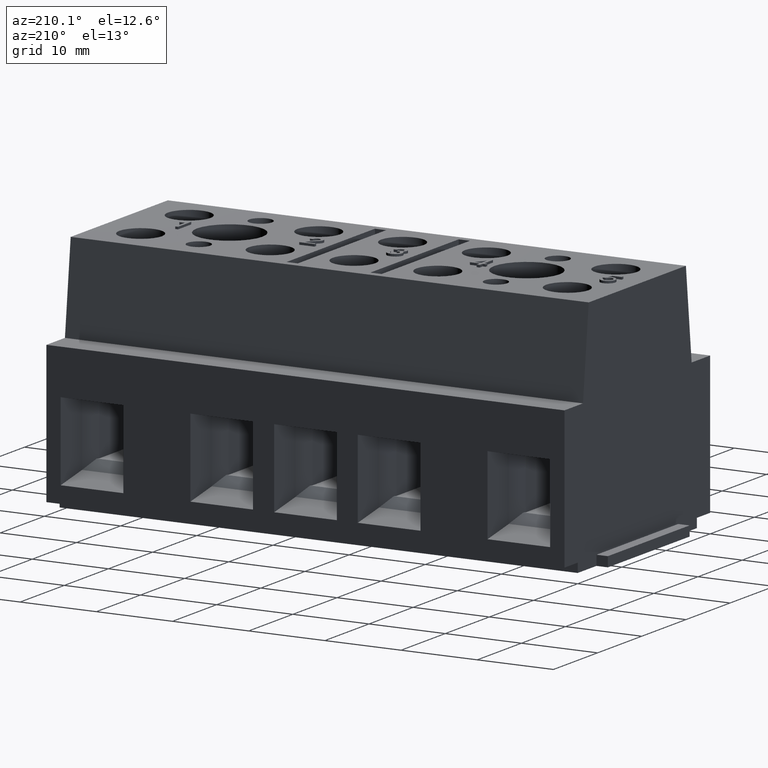
[diagram: clean part render]
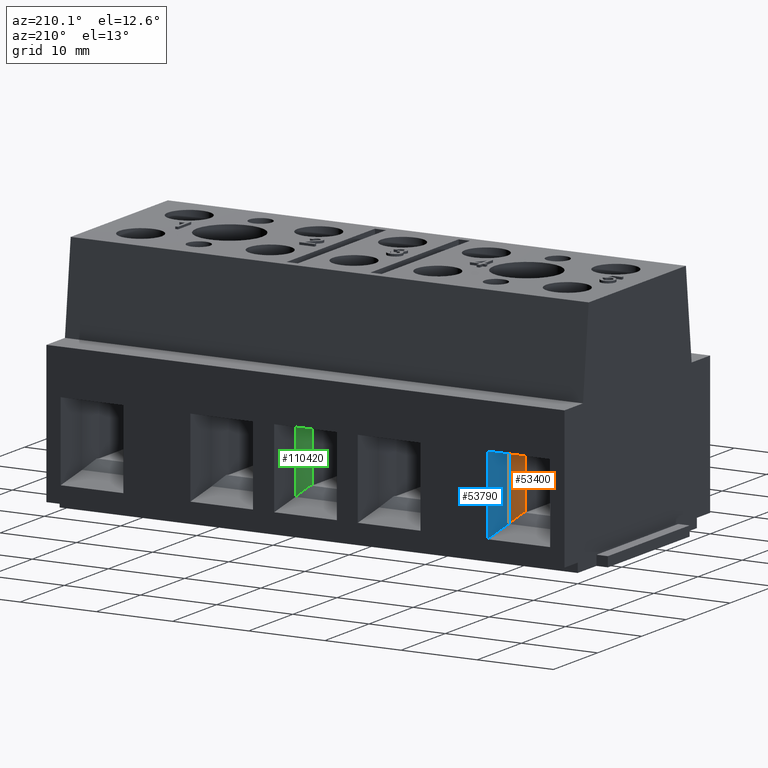
[diagram: same view with three faces highlighted in distinct colors, each labeled with its STEP entity id]
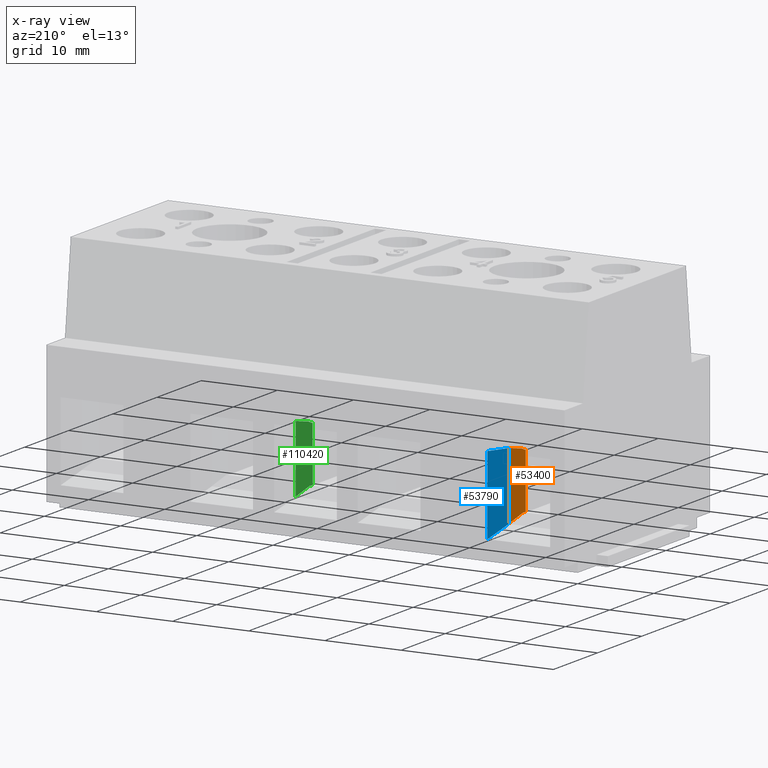
[diagram: x-ray of the same camera — body ghosted, the three highlighted faces saturated]
A machine part, auxiliary view with three faces highlighted in distinct colors.
The next image is the same camera in x-ray (body ghosted, the three faces saturated) — at least one of them is partly hidden behind the body in this view.
Their STEP definitions:

[orange] entity #53400 — the highlighted planar face has unit normal (0.7071, -0.7071, 0).
#51810=CARTESIAN_POINT('',(44.0213182031141,7.23412096955471,18.9));
#51820=VERTEX_POINT('',#51810);
#51850=CARTESIAN_POINT('',(0.,51.2554391726688,-25.1213182031141));
#51860=DIRECTION('',(0.577350269189626,-0.577350269189626,
0.577350269189626));
#51870=VECTOR('',#51860,1.);
#51880=LINE('',#51850,#51870);
#51890=CARTESIAN_POINT('',(45.2213182031141,6.03412096955471,20.1));
#51900=VERTEX_POINT('',#51890);
#51910=EDGE_CURVE('',#51820,#51900,#51880,.T.);
#52940=CARTESIAN_POINT('',(42.1713182031142,7.2591209695547,18.875));
#52950=DIRECTION('',(0.,-0.707106781186548,-0.707106781186548));
#52960=DIRECTION('',(-1.57009245868377E-16,0.707106781186548,
-0.707106781186548));
#52970=AXIS2_PLACEMENT_3D('',#52940,#52950,#52960);
#52980=PLANE('',#52970);
#52990=CARTESIAN_POINT('',(64.1988301313288,26.1341209695547,
-7.105427357601E-15));
#53000=DIRECTION('',(-0.377964473009227,-0.654653670707977,
0.654653670707977));
#53010=VECTOR('',#53000,1.);
#53020=LINE('',#52990,#53010);
#53030=CARTESIAN_POINT('',(52.6889086848682,6.19835223315833,
19.9357687363964));
#53040=VERTEX_POINT('',#53030);
#53050=CARTESIAN_POINT('',(52.4786196667794,5.8341209695547,20.3));
#53060=VERTEX_POINT('',#53050);
#53070=EDGE_CURVE('',#53040,#53060,#53020,.T.);
#53080=ORIENTED_EDGE('',*,*,#53070,.F.);
#53090=CARTESIAN_POINT('',(0.,5.83412096955469,20.3));
#53100=DIRECTION('',(-1.,-1.11022302462516E-16,1.11022302462516E-16));
#53110=VECTOR('',#53100,1.);
#53120=LINE('',#53090,#53110);
#53130=CARTESIAN_POINT('',(45.2213182031142,5.8341209695547,20.3));
#53140=VERTEX_POINT('',#53130);
#53150=EDGE_CURVE('',#53060,#53140,#53120,.T.);
#53160=ORIENTED_EDGE('',*,*,#53150,.F.);
#53170=CARTESIAN_POINT('',(45.2213182031142,26.1341209695547,
-7.105427357601E-15));
#53180=DIRECTION('',(1.66533453693773E-16,-0.707106781186548,
0.707106781186548));
#53190=VECTOR('',#53180,1.);
#53200=LINE('',#53170,#53190);
#53210=EDGE_CURVE('',#51900,#53140,#53200,.T.);
#53220=ORIENTED_EDGE('',*,*,#53210,.T.);
#53230=ORIENTED_EDGE('',*,*,#51910,.T.);
#53240=CARTESIAN_POINT('',(0.,7.23412096955471,18.9));
#53250=DIRECTION('',(1.,0.,0.));
#53260=VECTOR('',#53250,1.);
#53270=LINE('',#53240,#53260);
#53280=CARTESIAN_POINT('',(52.8123778057632,7.23412096955471,18.9));
#53290=VERTEX_POINT('',#53280);
#53300=EDGE_CURVE('',#51820,#53290,#53270,.T.);
#53310=ORIENTED_EDGE('',*,*,#53300,.F.);
#53320=CARTESIAN_POINT('',(55.0653579382135,26.1341209695547,
-7.105427357601E-15));
#53330=DIRECTION('',(0.0839930195368857,0.704608108337208,
-0.704608108337208));
#53340=VECTOR('',#53330,1.);
#53350=LINE('',#53320,#53340);
#53360=EDGE_CURVE('',#53040,#53290,#53350,.T.);
#53370=ORIENTED_EDGE('',*,*,#53360,.T.);
#53380=EDGE_LOOP('',(#53370,#53310,#53230,#53220,#53160,#53080));
#53390=FACE_OUTER_BOUND('',#53380,.T.);
#53400=ADVANCED_FACE('',(#53390),#52980,.F.);

[blue] entity #53790 — the highlighted planar face has unit normal (-1, 0, 0).
#51730=CARTESIAN_POINT('',(43.9963182031141,7.25912096955472,18.9));
#51740=VERTEX_POINT('',#51730);
#51770=CARTESIAN_POINT('',(0.,51.2554391726688,18.9));
#51780=DIRECTION('',(0.707106781186548,-0.707106781186547,0.));
#51790=VECTOR('',#51780,1.);
#51800=LINE('',#51770,#51790);
#51810=CARTESIAN_POINT('',(44.0213182031141,7.23412096955471,18.9));
#51820=VERTEX_POINT('',#51810);
#51830=EDGE_CURVE('',#51740,#51820,#51800,.T.);
#53240=CARTESIAN_POINT('',(0.,7.23412096955471,18.9));
#53250=DIRECTION('',(1.,0.,0.));
#53260=VECTOR('',#53250,1.);
#53270=LINE('',#53240,#53260);
#53280=CARTESIAN_POINT('',(52.8123778057632,7.23412096955471,18.9));
#53290=VERTEX_POINT('',#53280);
#53300=EDGE_CURVE('',#51820,#53290,#53270,.T.);
#53480=CARTESIAN_POINT('',(53.2713182031141,-14.2158790304453,18.9));
#53490=DIRECTION('',(-0.,0.,1.));
#53500=DIRECTION('',(0.,-1.,0.));
#53510=AXIS2_PLACEMENT_3D('',#53480,#53490,#53500);
#53520=PLANE('',#53510);
#53530=ORIENTED_EDGE('',*,*,#51830,.T.);
#53540=CARTESIAN_POINT('',(45.2762970862732,-7.105427357601E-15,18.9));
#53550=DIRECTION('',(-0.17364817766693,0.984807753012208,0.));
#53560=VECTOR('',#53550,1.);
#53570=LINE('',#53540,#53560);
#53580=CARTESIAN_POINT('',(43.1455405211958,12.0841209695547,18.9));
#53590=VERTEX_POINT('',#53580);
#53600=EDGE_CURVE('',#51740,#53590,#53570,.T.);
#53610=ORIENTED_EDGE('',*,*,#53600,.F.);
#53620=CARTESIAN_POINT('',(0.,12.0841209695547,18.9));
#53630=DIRECTION('',(-1.,0.,0.));
#53640=VECTOR('',#53630,1.);
#53650=LINE('',#53620,#53640);
#53660=CARTESIAN_POINT('',(53.3905235011274,12.0841209695547,18.9));
#53670=VERTEX_POINT('',#53660);
#53680=EDGE_CURVE('',#53670,#53590,#53650,.T.);
#53690=ORIENTED_EDGE('',*,*,#53680,.T.);
#53700=CARTESIAN_POINT('',(51.9500322597235,-7.105427357601E-15,18.9));
#53710=DIRECTION('',(-0.118367270859857,-0.992969883324358,0.));
#53720=VECTOR('',#53710,1.);
#53730=LINE('',#53700,#53720);
#53740=EDGE_CURVE('',#53670,#53290,#53730,.T.);
#53750=ORIENTED_EDGE('',*,*,#53740,.F.);
#53760=ORIENTED_EDGE('',*,*,#53300,.T.);
#53770=EDGE_LOOP('',(#53760,#53750,#53690,#53610,#53530));
#53780=FACE_OUTER_BOUND('',#53770,.T.);
#53790=ADVANCED_FACE('',(#53780),#53520,.T.);

[green] entity #110420 — the highlighted planar face has unit normal (0.7071, -0.7071, 0).
#105080=CARTESIAN_POINT('',(52.6889086848682,6.19835223315833,
-8.06423126360362));
#105090=VERTEX_POINT('',#105080);
#105140=CARTESIAN_POINT('',(55.0653579382135,26.1341209695547,-28.));
#105150=DIRECTION('',(0.0839930195368857,0.704608108337208,
-0.704608108337208));
#105160=VECTOR('',#105150,1.);
#105170=LINE('',#105140,#105160);
#105180=CARTESIAN_POINT('',(52.8123778057631,7.23412096955471,-9.1));
#105190=VERTEX_POINT('',#105180);
#105200=EDGE_CURVE('',#105090,#105190,#105170,.T.);
#106470=CARTESIAN_POINT('',(44.0213182031141,7.23412096955471,
-9.09999999999999));
#106480=VERTEX_POINT('',#106470);
#106590=CARTESIAN_POINT('',(-7.105427357601E-15,7.23412096955471,
-9.09999999999999));
#106600=DIRECTION('',(1.,0.,0.));
#106610=VECTOR('',#106600,1.);
#106620=LINE('',#106590,#106610);
#106630=EDGE_CURVE('',#106480,#105190,#106620,.T.);
#106900=CARTESIAN_POINT('',(-7.105427357601E-15,51.2554391726688,
-53.1213182031141));
#106910=DIRECTION('',(0.577350269189626,-0.577350269189626,
0.577350269189626));
#106920=VECTOR('',#106910,1.);
#106930=LINE('',#106900,#106920);
#106940=CARTESIAN_POINT('',(45.2213182031141,6.03412096955471,
-7.89999999999999));
#106950=VERTEX_POINT('',#106940);
#106960=EDGE_CURVE('',#106480,#106950,#106930,.T.);
#107200=CARTESIAN_POINT('',(45.2213182031141,26.1341209695547,-28.));
#107210=DIRECTION('',(1.66533453693773E-16,-0.707106781186548,
0.707106781186548));
#107220=VECTOR('',#107210,1.);
#107230=LINE('',#107200,#107220);
#107240=CARTESIAN_POINT('',(45.2213182031142,5.8341209695547,
-7.69999999999997));
#107250=VERTEX_POINT('',#107240);
#107260=EDGE_CURVE('',#106950,#107250,#107230,.T.);
#107740=CARTESIAN_POINT('',(-7.105427357601E-15,5.83412096955469,
-7.69999999999997));
#107750=DIRECTION('',(-1.,-1.11022302462516E-16,1.11022302462516E-16));
#107760=VECTOR('',#107750,1.);
#107770=LINE('',#107740,#107760);
#107780=CARTESIAN_POINT('',(52.4786196667794,5.8341209695547,
-7.69999999999998));
#107790=VERTEX_POINT('',#107780);
#107800=EDGE_CURVE('',#107790,#107250,#107770,.T.);
#108110=CARTESIAN_POINT('',(64.1988301313288,26.1341209695547,-28.));
#108120=DIRECTION('',(-0.377964473009227,-0.654653670707977,
0.654653670707977));
#108130=VECTOR('',#108120,1.);
#108140=LINE('',#108110,#108130);
#108150=EDGE_CURVE('',#105090,#107790,#108140,.T.);
#110290=CARTESIAN_POINT('',(42.1713182031141,7.2591209695547,
-9.12499999999999));
#110300=DIRECTION('',(0.,-0.707106781186548,-0.707106781186548));
#110310=DIRECTION('',(-1.57009245868377E-16,0.707106781186548,
-0.707106781186548));
#110320=AXIS2_PLACEMENT_3D('',#110290,#110300,#110310);
#110330=PLANE('',#110320);
#110340=ORIENTED_EDGE('',*,*,#108150,.F.);
#110350=ORIENTED_EDGE('',*,*,#107800,.F.);
#110360=ORIENTED_EDGE('',*,*,#107260,.T.);
#110370=ORIENTED_EDGE('',*,*,#106960,.T.);
#110380=ORIENTED_EDGE('',*,*,#106630,.F.);
#110390=ORIENTED_EDGE('',*,*,#105200,.T.);
#110400=EDGE_LOOP('',(#110390,#110380,#110370,#110360,#110350,#110340));
#110410=FACE_OUTER_BOUND('',#110400,.T.);
#110420=ADVANCED_FACE('',(#110410),#110330,.F.);